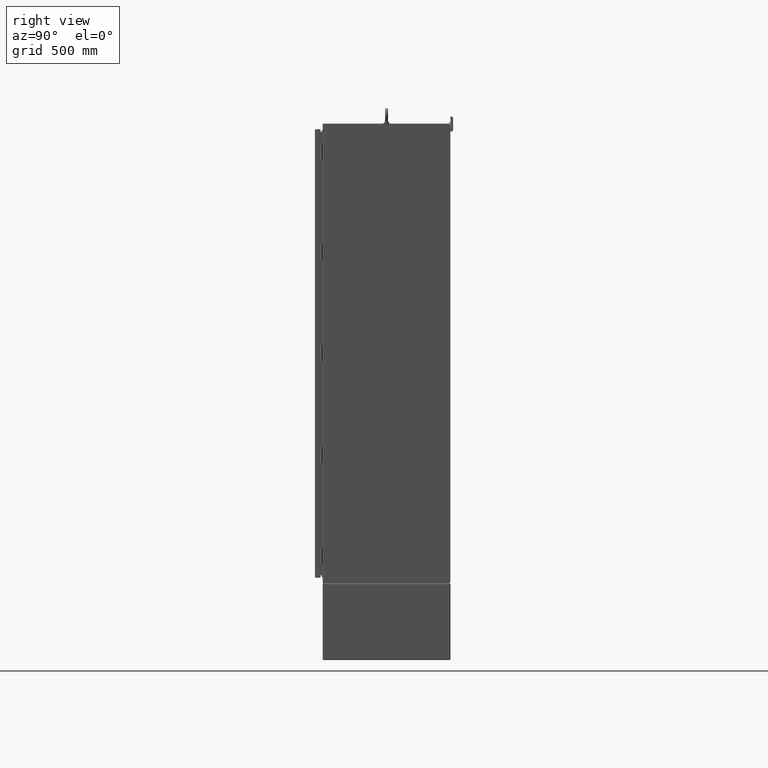
[diagram: clean part render]
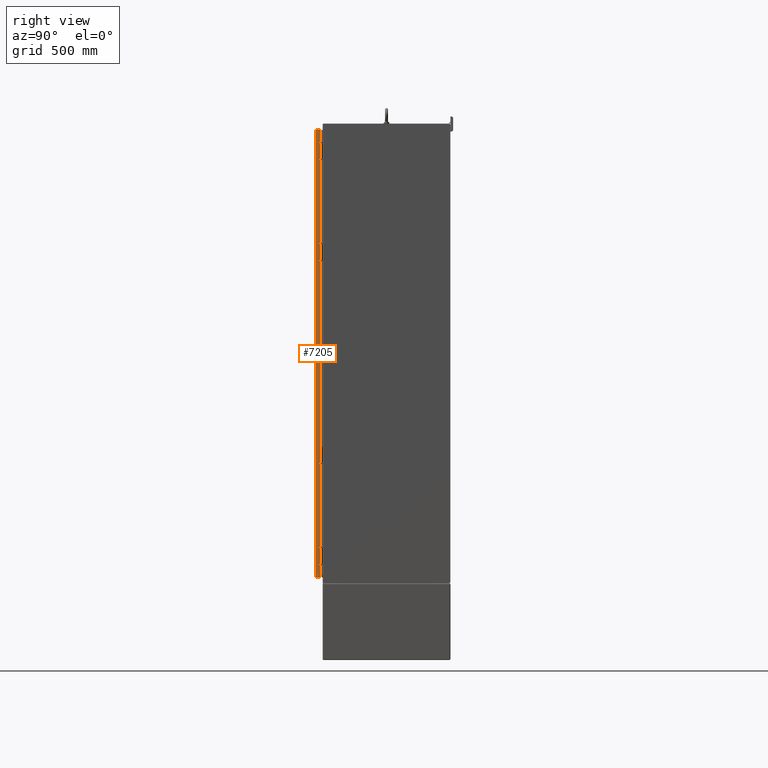
[diagram: same view with one face highlighted and labeled with its STEP entity id]
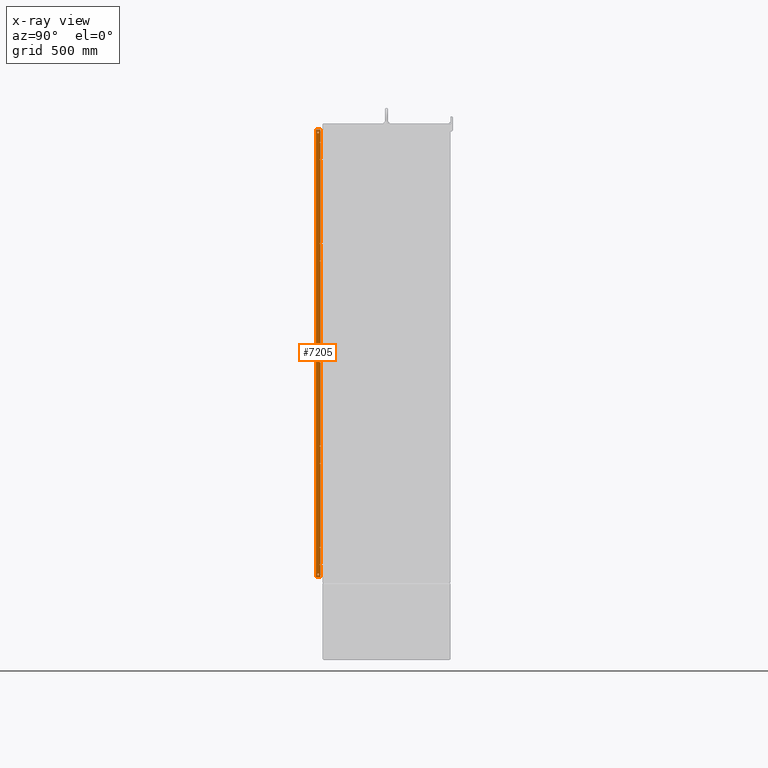
[diagram: x-ray of the same camera — body ghosted, the highlighted face saturated]
A machine part, right view. The second image highlights one B-rep face of the part: STEP entity #7205.
The next image is the same camera in x-ray: the body ghosted, the highlighted face saturated — about 0% of this face is hidden behind the body in this view.
In plain terms, the highlighted planar face has unit normal (1, 0, 0).
Its self-contained STEP definition (entity closure, byte-faithful):
#7205 = ADVANCED_FACE( '', ( #15578, #15579, #15580, #15581, #15582, #15583, #15584, #15585, #15586, #15587, #15588, #15589, #15590 ), #15591, .T. );
#15578 = FACE_BOUND( '', #31893, .T. );
#15579 = FACE_BOUND( '', #31894, .T. );
#15580 = FACE_BOUND( '', #31895, .T. );
#15581 = FACE_BOUND( '', #31896, .T. );
#15582 = FACE_BOUND( '', #31897, .T. );
#15583 = FACE_BOUND( '', #31898, .T. );
#15584 = FACE_BOUND( '', #31899, .T. );
#15585 = FACE_OUTER_BOUND( '', #31900, .T. );
#15586 = FACE_BOUND( '', #31901, .T. );
#15587 = FACE_BOUND( '', #31902, .T. );
#15588 = FACE_BOUND( '', #31903, .T. );
#15589 = FACE_BOUND( '', #31904, .T. );
#15590 = FACE_BOUND( '', #31905, .T. );
#15591 = PLANE( '', #31906 );
#31893 = EDGE_LOOP( '', ( #58611 ) );
#31894 = EDGE_LOOP( '', ( #58612 ) );
#31895 = EDGE_LOOP( '', ( #58613 ) );
#31896 = EDGE_LOOP( '', ( #58614 ) );
#31897 = EDGE_LOOP( '', ( #58615 ) );
#31898 = EDGE_LOOP( '', ( #58616 ) );
#31899 = EDGE_LOOP( '', ( #58617 ) );
#31900 = EDGE_LOOP( '', ( #58618, #58619, #58620, #58621 ) );
#31901 = EDGE_LOOP( '', ( #58622 ) );
#31902 = EDGE_LOOP( '', ( #58623 ) );
#31903 = EDGE_LOOP( '', ( #58624 ) );
#31904 = EDGE_LOOP( '', ( #58625 ) );
#31905 = EDGE_LOOP( '', ( #58626 ) );
#31906 = AXIS2_PLACEMENT_3D( '', #58627, #58628, #58629 );
#58611 = ORIENTED_EDGE( '', *, *, #79681, .T. );
#58612 = ORIENTED_EDGE( '', *, *, #79682, .T. );
#58613 = ORIENTED_EDGE( '', *, *, #77991, .T. );
#58614 = ORIENTED_EDGE( '', *, *, #78159, .T. );
#58615 = ORIENTED_EDGE( '', *, *, #79683, .T. );
#58616 = ORIENTED_EDGE( '', *, *, #74541, .T. );
#58617 = ORIENTED_EDGE( '', *, *, #79684, .T. );
#58618 = ORIENTED_EDGE( '', *, *, #78599, .F. );
#58619 = ORIENTED_EDGE( '', *, *, #79685, .F. );
#58620 = ORIENTED_EDGE( '', *, *, #79686, .T. );
#58621 = ORIENTED_EDGE( '', *, *, #73359, .T. );
#58622 = ORIENTED_EDGE( '', *, *, #78555, .T. );
#58623 = ORIENTED_EDGE( '', *, *, #74775, .T. );
#58624 = ORIENTED_EDGE( '', *, *, #78619, .T. );
#58625 = ORIENTED_EDGE( '', *, *, #75133, .T. );
#58626 = ORIENTED_EDGE( '', *, *, #77952, .T. );
#58627 = CARTESIAN_POINT( '', ( -447.992500000000, 0.000000000000000, 6226.08610000000 ) );
#58628 = DIRECTION( '', ( -1.00000000000000, 0.000000000000000, 0.000000000000000 ) );
#58629 = DIRECTION( '', ( 0.000000000000000, 0.000000000000000, 1.00000000000000 ) );
#73359 = EDGE_CURVE( '', #83522, #83526, #83528, .T. );
#74541 = EDGE_CURVE( '', #85563, #85563, #85564, .T. );
#74775 = EDGE_CURVE( '', #85954, #85954, #85955, .F. );
#75133 = EDGE_CURVE( '', #86542, #86542, #86543, .F. );
#77952 = EDGE_CURVE( '', #90945, #90945, #90946, .F. );
#77991 = EDGE_CURVE( '', #91002, #91002, #91003, .F. );
#78159 = EDGE_CURVE( '', #91248, #91248, #91249, .F. );
#78555 = EDGE_CURVE( '', #91792, #91792, #91793, .F. );
#78599 = EDGE_CURVE( '', #87251, #83526, #91858, .T. );
#78619 = EDGE_CURVE( '', #91891, #91891, #91892, .F. );
#79681 = EDGE_CURVE( '', #93360, #93360, #93361, .F. );
#79682 = EDGE_CURVE( '', #93362, #93362, #93363, .F. );
#79683 = EDGE_CURVE( '', #93364, #93364, #93365, .F. );
#79684 = EDGE_CURVE( '', #93366, #93366, #93367, .T. );
#79685 = EDGE_CURVE( '', #93368, #87251, #93369, .T. );
#79686 = EDGE_CURVE( '', #93368, #83522, #93370, .T. );
#83522 = VERTEX_POINT( '', #99377 );
#83526 = VERTEX_POINT( '', #99383 );
#83528 = LINE( '', #99386, #99387 );
#85563 = VERTEX_POINT( '', #104826 );
#85564 = CIRCLE( '', #104827, 3.56870000000000 );
#85954 = VERTEX_POINT( '', #106085 );
#85955 = CIRCLE( '', #106086, 1.58115000000000 );
#86542 = VERTEX_POINT( '', #107678 );
#86543 = CIRCLE( '', #107679, 1.58115000000000 );
#87251 = VERTEX_POINT( '', #109564 );
#90945 = VERTEX_POINT( '', #120185 );
#90946 = CIRCLE( '', #120186, 1.58115000000000 );
#91002 = VERTEX_POINT( '', #120404 );
#91003 = CIRCLE( '', #120405, 1.58115000000000 );
#91248 = VERTEX_POINT( '', #121133 );
#91249 = CIRCLE( '', #121134, 1.58115000000000 );
#91792 = VERTEX_POINT( '', #122667 );
#91793 = CIRCLE( '', #122668, 1.58115000000000 );
#91858 = LINE( '', #122975, #122976 );
#91891 = VERTEX_POINT( '', #123033 );
#91892 = CIRCLE( '', #123034, 1.58115000000000 );
#93360 = VERTEX_POINT( '', #127348 );
#93361 = CIRCLE( '', #127349, 1.58115000000000 );
#93362 = VERTEX_POINT( '', #127350 );
#93363 = CIRCLE( '', #127351, 1.58115000000000 );
#93364 = VERTEX_POINT( '', #127352 );
#93365 = CIRCLE( '', #127353, 1.58115000000000 );
#93366 = VERTEX_POINT( '', #127354 );
#93367 = CIRCLE( '', #127355, 3.56870000000000 );
#93368 = VERTEX_POINT( '', #127356 );
#93369 = LINE( '', #127357, #127358 );
#93370 = LINE( '', #127359, #127360 );
#99377 = CARTESIAN_POINT( '', ( -447.992500000000, 22.2250000000000, 889.505171572875 ) );
#99383 = CARTESIAN_POINT( '', ( -447.992500000000, 22.2250000000000, -889.505171572875 ) );
#99386 = CARTESIAN_POINT( '', ( -447.992500000000, 22.2250000000000, 6226.08610000000 ) );
#99387 = VECTOR( '', #135841, 1000.00000000000 );
#104826 = CARTESIAN_POINT( '', ( -447.992500000000, 12.7000000000000, -883.043700000000 ) );
#104827 = AXIS2_PLACEMENT_3D( '', #136639, #136640, #136641 );
#106085 = CARTESIAN_POINT( '', ( -447.992500000000, 20.6248000000000, -366.814100000000 ) );
#106086 = AXIS2_PLACEMENT_3D( '', #136782, #136783, #136784 );
#107678 = CARTESIAN_POINT( '', ( -447.992500000000, 20.6248000000000, 438.632600000000 ) );
#107679 = AXIS2_PLACEMENT_3D( '', #136982, #136983, #136984 );
#109564 = CARTESIAN_POINT( '', ( -447.992500000000, 3.47979999999993, -889.505171572875 ) );
#120185 = CARTESIAN_POINT( '', ( -447.992500000000, 20.6248000000000, 841.355950000000 ) );
#120186 = AXIS2_PLACEMENT_3D( '', #138509, #138510, #138511 );
#120404 = CARTESIAN_POINT( '', ( -447.992500000000, 20.6248000000000, -32.7469500000000 ) );
#120405 = AXIS2_PLACEMENT_3D( '', #138533, #138534, #138535 );
#121133 = CARTESIAN_POINT( '', ( -447.992500000000, 20.6248000000000, -435.470300000000 ) );
#121134 = AXIS2_PLACEMENT_3D( '', #138634, #138635, #138636 );
#122667 = CARTESIAN_POINT( '', ( -447.992500000000, 20.6248000000000, -769.537450000000 ) );
#122668 = AXIS2_PLACEMENT_3D( '', #138874, #138875, #138876 );
#122975 = CARTESIAN_POINT( '', ( -447.992500000000, 3.47980000000000, -889.505171572875 ) );
#122976 = VECTOR( '', #138895, 1000.00000000000 );
#123033 = CARTESIAN_POINT( '', ( -447.992500000000, 20.6248000000000, 35.9092500000000 ) );
#123034 = AXIS2_PLACEMENT_3D( '', #138905, #138906, #138907 );
#127348 = CARTESIAN_POINT( '', ( -447.992500000000, 20.6248000000000, 772.699750000000 ) );
#127349 = AXIS2_PLACEMENT_3D( '', #139475, #139476, #139477 );
#127350 = CARTESIAN_POINT( '', ( -447.992500000000, 20.6248000000000, 369.976400000000 ) );
#127351 = AXIS2_PLACEMENT_3D( '', #139478, #139479, #139480 );
#127352 = CARTESIAN_POINT( '', ( -447.992500000000, 20.6248000000000, -838.193650000000 ) );
#127353 = AXIS2_PLACEMENT_3D( '', #139481, #139482, #139483 );
#127354 = CARTESIAN_POINT( '', ( -447.992500000000, 12.7000000000000, 875.906300000000 ) );
#127355 = AXIS2_PLACEMENT_3D( '', #139484, #139485, #139486 );
#127356 = CARTESIAN_POINT( '', ( -447.992500000000, 3.47980000000000, 889.505171572875 ) );
#127357 = CARTESIAN_POINT( '', ( -447.992500000000, 3.47980000000000, 6226.08610000000 ) );
#127358 = VECTOR( '', #139487, 1000.00000000000 );
#127359 = CARTESIAN_POINT( '', ( -447.992500000000, 3.47980000000000, 889.505171572875 ) );
#127360 = VECTOR( '', #139488, 1000.00000000000 );
#135841 = DIRECTION( '', ( 0.000000000000000, 0.000000000000000, -1.00000000000000 ) );
#136639 = CARTESIAN_POINT( '', ( -447.992500000000, 12.7000000000000, -879.475000000000 ) );
#136640 = DIRECTION( '', ( 1.00000000000000, 0.000000000000000, 0.000000000000000 ) );
#136641 = DIRECTION( '', ( 0.000000000000000, 0.000000000000000, -1.00000000000000 ) );
#136782 = CARTESIAN_POINT( '', ( -447.992500000000, 20.6248000000000, -368.395250000000 ) );
#136783 = DIRECTION( '', ( -1.00000000000000, 0.000000000000000, 0.000000000000000 ) );
#136784 = DIRECTION( '', ( 0.000000000000000, 0.000000000000000, 1.00000000000000 ) );
#136982 = CARTESIAN_POINT( '', ( -447.992500000000, 20.6248000000000, 437.051450000000 ) );
#136983 = DIRECTION( '', ( -1.00000000000000, 0.000000000000000, 0.000000000000000 ) );
#136984 = DIRECTION( '', ( 0.000000000000000, 0.000000000000000, 1.00000000000000 ) );
#138509 = CARTESIAN_POINT( '', ( -447.992500000000, 20.6248000000000, 839.774800000000 ) );
#138510 = DIRECTION( '', ( -1.00000000000000, 0.000000000000000, 0.000000000000000 ) );
#138511 = DIRECTION( '', ( 0.000000000000000, 0.000000000000000, 1.00000000000000 ) );
#138533 = CARTESIAN_POINT( '', ( -447.992500000000, 20.6248000000000, -34.3281000000000 ) );
#138534 = DIRECTION( '', ( -1.00000000000000, 0.000000000000000, 0.000000000000000 ) );
#138535 = DIRECTION( '', ( 0.000000000000000, 0.000000000000000, 1.00000000000000 ) );
#138634 = CARTESIAN_POINT( '', ( -447.992500000000, 20.6248000000000, -437.051450000000 ) );
#138635 = DIRECTION( '', ( -1.00000000000000, 0.000000000000000, 0.000000000000000 ) );
#138636 = DIRECTION( '', ( 0.000000000000000, 0.000000000000000, 1.00000000000000 ) );
#138874 = CARTESIAN_POINT( '', ( -447.992500000000, 20.6248000000000, -771.118600000000 ) );
#138875 = DIRECTION( '', ( -1.00000000000000, 0.000000000000000, 0.000000000000000 ) );
#138876 = DIRECTION( '', ( 0.000000000000000, 0.000000000000000, 1.00000000000000 ) );
#138895 = DIRECTION( '', ( 0.000000000000000, 1.00000000000000, 0.000000000000000 ) );
#138905 = CARTESIAN_POINT( '', ( -447.992500000000, 20.6248000000000, 34.3281000000000 ) );
#138906 = DIRECTION( '', ( -1.00000000000000, 0.000000000000000, 0.000000000000000 ) );
#138907 = DIRECTION( '', ( 0.000000000000000, 0.000000000000000, 1.00000000000000 ) );
#139475 = CARTESIAN_POINT( '', ( -447.992500000000, 20.6248000000000, 771.118600000000 ) );
#139476 = DIRECTION( '', ( -1.00000000000000, 0.000000000000000, 0.000000000000000 ) );
#139477 = DIRECTION( '', ( 0.000000000000000, 0.000000000000000, 1.00000000000000 ) );
#139478 = CARTESIAN_POINT( '', ( -447.992500000000, 20.6248000000000, 368.395250000000 ) );
#139479 = DIRECTION( '', ( -1.00000000000000, 0.000000000000000, 0.000000000000000 ) );
#139480 = DIRECTION( '', ( 0.000000000000000, 0.000000000000000, 1.00000000000000 ) );
#139481 = CARTESIAN_POINT( '', ( -447.992500000000, 20.6248000000000, -839.774800000000 ) );
#139482 = DIRECTION( '', ( -1.00000000000000, 0.000000000000000, 0.000000000000000 ) );
#139483 = DIRECTION( '', ( 0.000000000000000, 0.000000000000000, 1.00000000000000 ) );
#139484 = CARTESIAN_POINT( '', ( -447.992500000000, 12.7000000000000, 879.475000000000 ) );
#139485 = DIRECTION( '', ( 1.00000000000000, 0.000000000000000, 0.000000000000000 ) );
#139486 = DIRECTION( '', ( 0.000000000000000, 0.000000000000000, -1.00000000000000 ) );
#139487 = DIRECTION( '', ( 0.000000000000000, 0.000000000000000, -1.00000000000000 ) );
#139488 = DIRECTION( '', ( 0.000000000000000, 1.00000000000000, 0.000000000000000 ) );